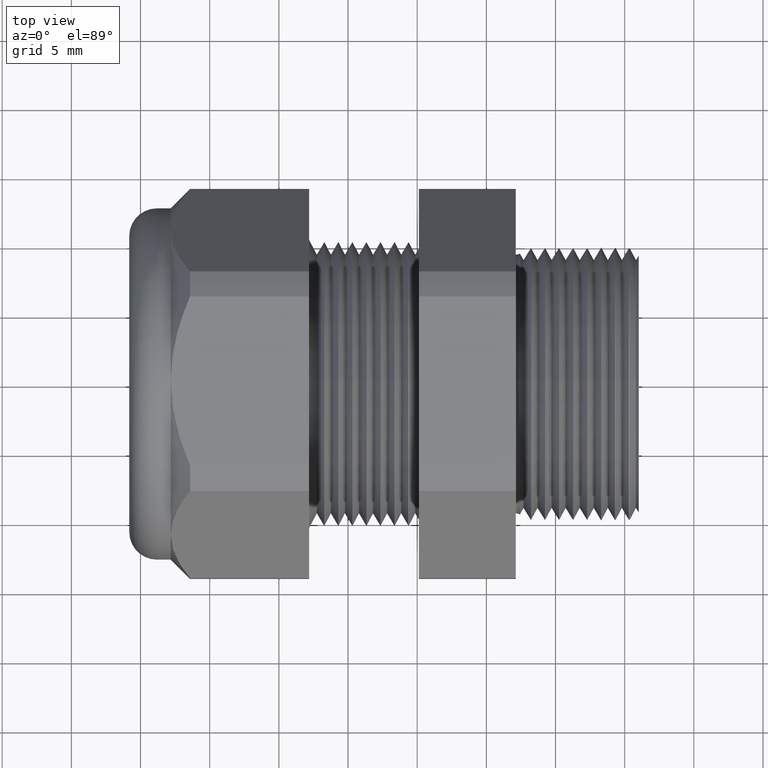
[diagram: clean part render]
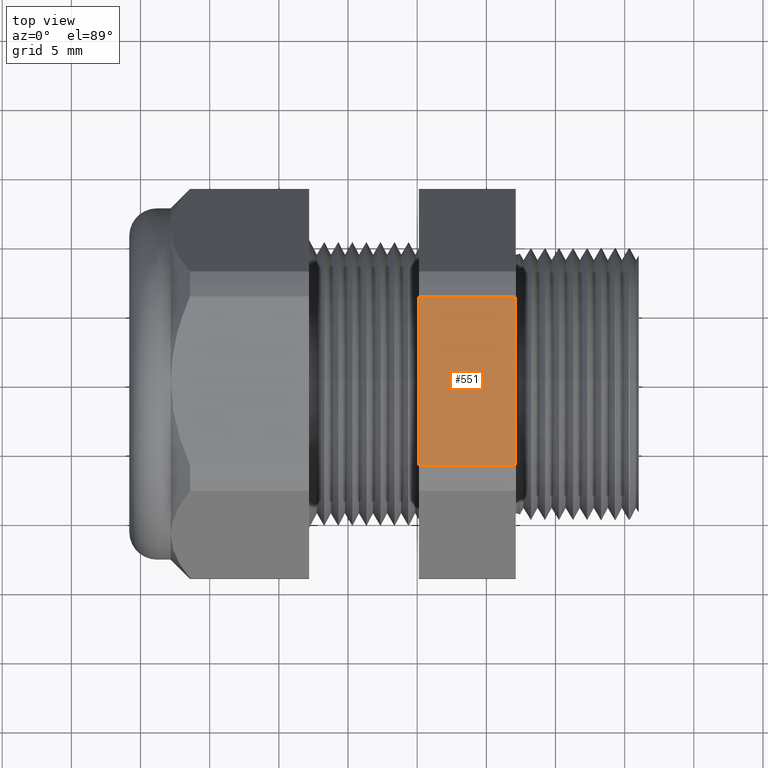
[diagram: same view with one face highlighted and labeled with its STEP entity id]
A machine part, top view. The second image highlights one B-rep face of the part: STEP entity #551.
In plain terms, the highlighted planar face has unit normal (0, 0, 1).
Its self-contained STEP definition (entity closure, byte-faithful):
#312 = VERTEX_POINT ( 'NONE', #1927 ) ;
#314 = EDGE_CURVE ( 'NONE', #312, #315, #1926, .T. ) ;
#315 = VERTEX_POINT ( 'NONE', #1922 ) ;
#452 = VERTEX_POINT ( 'NONE', #2204 ) ;
#513 = EDGE_CURVE ( 'NONE', #452, #514, #2314, .T. ) ;
#514 = VERTEX_POINT ( 'NONE', #2310 ) ;
#532 = EDGE_CURVE ( 'NONE', #315, #452, #2340, .T. ) ;
#533 = ORIENTED_EDGE ( 'NONE', *, *, #314, .F. ) ;
#549 = EDGE_CURVE ( 'NONE', #312, #514, #2382, .T. ) ;
#551 = ADVANCED_FACE ( 'NONE', ( #2374 ), #2373, .T. ) ;
#552 = EDGE_LOOP ( 'NONE', ( #553, #554, #555, #533 ) ) ;
#553 = ORIENTED_EDGE ( 'NONE', *, *, #549, .T. ) ;
#554 = ORIENTED_EDGE ( 'NONE', *, *, #513, .F. ) ;
#555 = ORIENTED_EDGE ( 'NONE', *, *, #532, .F. ) ;
#1922 = CARTESIAN_POINT ( 'NONE',  ( -0.3100000000000000500, -0.2408837894089182200, 0.5000000000000000000 ) ) ;
#1923 = DIRECTION ( 'NONE',  ( -3.749030204222210100E-017, -1.000000000000000000, 0.0000000000000000000 ) ) ;
#1924 = VECTOR ( 'NONE', #1923, 39.37007874015748100 ) ;
#1925 = CARTESIAN_POINT ( 'NONE',  ( -0.3100000000000000000, 0.9999999999999998900, 0.5000000000000000000 ) ) ;
#1926 = LINE ( 'NONE', #1925, #1924 ) ;
#1927 = CARTESIAN_POINT ( 'NONE',  ( -0.3100000000000000000, 0.2408837894089181100, 0.5000000000000000000 ) ) ;
#2204 = CARTESIAN_POINT ( 'NONE',  ( -0.5855905511811022600, -0.2408837894089182200, 0.5000000000000000000 ) ) ;
#2310 = CARTESIAN_POINT ( 'NONE',  ( -0.5855905511811022600, 0.2408837894089181100, 0.5000000000000000000 ) ) ;
#2311 = DIRECTION ( 'NONE',  ( 3.749030204222210100E-017, 1.000000000000000000, 0.0000000000000000000 ) ) ;
#2312 = VECTOR ( 'NONE', #2311, 39.37007874015748100 ) ;
#2313 = CARTESIAN_POINT ( 'NONE',  ( -0.5855905511811022600, 0.9999999999999996700, 0.5000000000000000000 ) ) ;
#2314 = LINE ( 'NONE', #2313, #2312 ) ;
#2337 = DIRECTION ( 'NONE',  ( -1.000000000000000000, 0.0000000000000000000, 0.0000000000000000000 ) ) ;
#2338 = VECTOR ( 'NONE', #2337, 39.37007874015748100 ) ;
#2339 = CARTESIAN_POINT ( 'NONE',  ( 0.04000000000000011900, -0.2408837894089182200, 0.5000000000000000000 ) ) ;
#2340 = LINE ( 'NONE', #2339, #2338 ) ;
#2369 = DIRECTION ( 'NONE',  ( 1.000000000000000000, 0.0000000000000000000, 0.0000000000000000000 ) ) ;
#2370 = DIRECTION ( 'NONE',  ( 0.0000000000000000000, 0.0000000000000000000, 1.000000000000000000 ) ) ;
#2371 = CARTESIAN_POINT ( 'NONE',  ( 0.04000000000000011900, -0.2408837894089180500, 0.5000000000000000000 ) ) ;
#2372 = AXIS2_PLACEMENT_3D ( 'NONE', #2371, #2370, #2369 ) ;
#2373 = PLANE ( 'NONE',  #2372 ) ;
#2374 = FACE_OUTER_BOUND ( 'NONE', #552, .T. ) ;
#2375 = DIRECTION ( 'NONE',  ( -1.000000000000000000, 0.0000000000000000000, 0.0000000000000000000 ) ) ;
#2376 = VECTOR ( 'NONE', #2375, 39.37007874015748100 ) ;
#2377 = CARTESIAN_POINT ( 'NONE',  ( 0.04000000000000011900, 0.2408837894089181100, 0.5000000000000000000 ) ) ;
#2382 = LINE ( 'NONE', #2377, #2376 ) ;